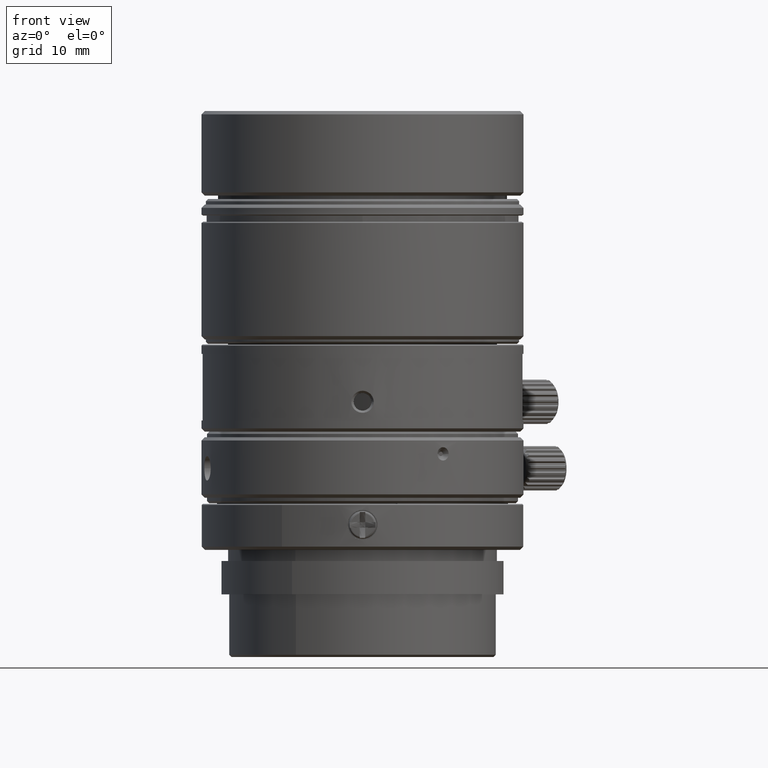
[diagram: clean part render]
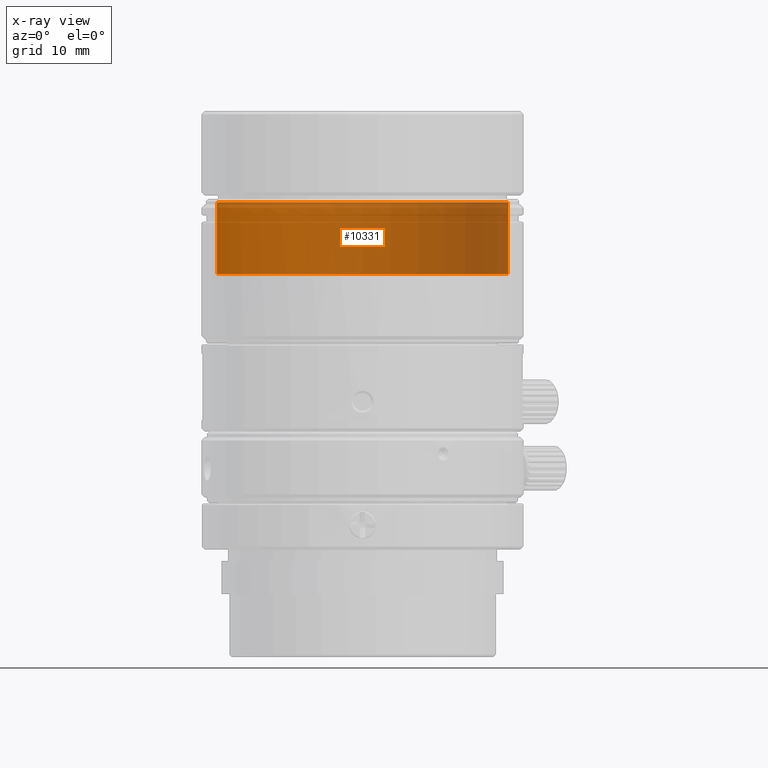
[diagram: x-ray — body ghosted, one internal face saturated and labeled with its STEP entity id]
A machine part, front view, then the same camera in x-ray: the body is ghosted and one INTERNAL B-rep face — a face not visible from any outside direction — is saturated and labeled: STEP entity #10331.
In plain terms, the highlighted cylindrical surface (partial cylindrical patch) has radius 13.1 mm, axis along (0, 0, 1).
Its self-contained STEP definition (entity closure, byte-faithful):
#3413 = ORIENTED_EDGE ( 'NONE', *, *, #43880, .T. ) ;
#5160 = CARTESIAN_POINT ( 'NONE',  ( 13.09999978367387641, -2.055365606607006986E-05, 34.88140330819000212 ) ) ;
#7605 = DIRECTION ( 'NONE',  ( 0.000000000000000000, 0.000000000000000000, 1.000000000000000000 ) ) ;
#10331 = ADVANCED_FACE ( 'NONE', ( #39918 ), #30794, .F. ) ;
#12258 = EDGE_CURVE ( 'NONE', #35672, #58074, #28186, .T. ) ;
#12772 = VERTEX_POINT ( 'NONE', #5160 ) ;
#12999 = DIRECTION ( 'NONE',  ( 0.9999999999987692068, -1.568981404874210233E-06, 0.000000000000000000 ) ) ;
#14273 = DIRECTION ( 'NONE',  ( 0.000000000000000000, 0.000000000000000000, 1.000000000000000000 ) ) ;
#19706 = CIRCLE ( 'NONE', #27691, 13.09999978368999685 ) ;
#21468 = ORIENTED_EDGE ( 'NONE', *, *, #37110, .T. ) ;
#24564 = ORIENTED_EDGE ( 'NONE', *, *, #53802, .T. ) ;
#25206 = CARTESIAN_POINT ( 'NONE',  ( 13.09999978367387641, -2.055365606607006986E-05, 28.43140331706900170 ) ) ;
#27084 = DIRECTION ( 'NONE',  ( 0.000000000000000000, 0.000000000000000000, -1.000000000000000000 ) ) ;
#27691 = AXIS2_PLACEMENT_3D ( 'NONE', #60950, #27084, #12999 ) ;
#28186 = LINE ( 'NONE', #51390, #52165 ) ;
#28978 = CARTESIAN_POINT ( 'NONE',  ( 0.000000000000000000, 0.000000000000000000, 34.88140330819000212 ) ) ;
#29458 = CIRCLE ( 'NONE', #46496, 13.09999978368999685 ) ;
#30157 = CARTESIAN_POINT ( 'NONE',  ( 13.09999978367387286, -2.055365606607006986E-05, 21.22048904119999690 ) ) ;
#30794 = CYLINDRICAL_SURFACE ( 'NONE', #53099, 13.09999978368999685 ) ;
#33327 = VERTEX_POINT ( 'NONE', #25206 ) ;
#34600 = ORIENTED_EDGE ( 'NONE', *, *, #12258, .F. ) ;
#35672 = VERTEX_POINT ( 'NONE', #42528 ) ;
#36684 = DIRECTION ( 'NONE',  ( 0.000000000000000000, 0.000000000000000000, 1.000000000000000000 ) ) ;
#37110 = EDGE_CURVE ( 'NONE', #35672, #33327, #19706, .T. ) ;
#39163 = EDGE_LOOP ( 'NONE', ( #21468, #3413, #24564, #34600 ) ) ;
#39918 = FACE_OUTER_BOUND ( 'NONE', #39163, .T. ) ;
#42528 = CARTESIAN_POINT ( 'NONE',  ( -13.09999978367387641, 2.055365606446578607E-05, 28.43140331706900170 ) ) ;
#43880 = EDGE_CURVE ( 'NONE', #33327, #12772, #59623, .T. ) ;
#45371 = VECTOR ( 'NONE', #58704, 1000.000000000000000 ) ;
#46003 = CARTESIAN_POINT ( 'NONE',  ( -13.09999978367387286, 2.055365606446578268E-05, 34.88140330819000212 ) ) ;
#46496 = AXIS2_PLACEMENT_3D ( 'NONE', #28978, #14273, #56897 ) ;
#50208 = CARTESIAN_POINT ( 'NONE',  ( 0.000000000000000000, 0.000000000000000000, 21.22048904119999690 ) ) ;
#51390 = CARTESIAN_POINT ( 'NONE',  ( -13.09999978367387286, 2.055365606446578268E-05, 21.22048904119999690 ) ) ;
#52165 = VECTOR ( 'NONE', #36684, 1000.000000000000000 ) ;
#53099 = AXIS2_PLACEMENT_3D ( 'NONE', #50208, #7605, #54006 ) ;
#53802 = EDGE_CURVE ( 'NONE', #12772, #58074, #29458, .T. ) ;
#54006 = DIRECTION ( 'NONE',  ( -0.9999999999987692068, 1.568981404874210233E-06, 0.000000000000000000 ) ) ;
#56897 = DIRECTION ( 'NONE',  ( -0.9999999999987692068, 1.568981404874210233E-06, 0.000000000000000000 ) ) ;
#58074 = VERTEX_POINT ( 'NONE', #46003 ) ;
#58704 = DIRECTION ( 'NONE',  ( 0.000000000000000000, 0.000000000000000000, 1.000000000000000000 ) ) ;
#59623 = LINE ( 'NONE', #30157, #45371 ) ;
#60950 = CARTESIAN_POINT ( 'NONE',  ( 0.000000000000000000, 0.000000000000000000, 28.43140331706900170 ) ) ;